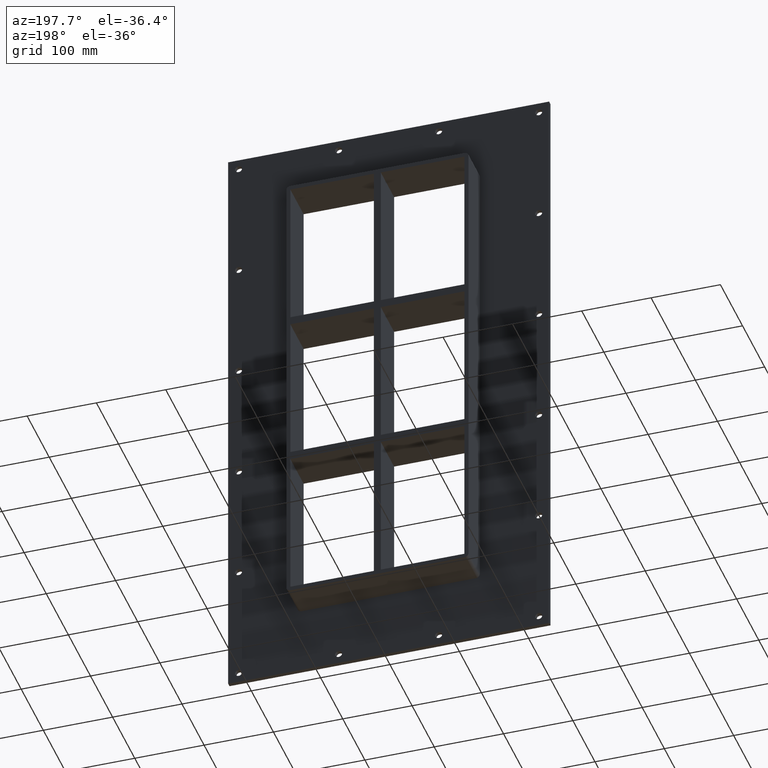
[diagram: clean part render]
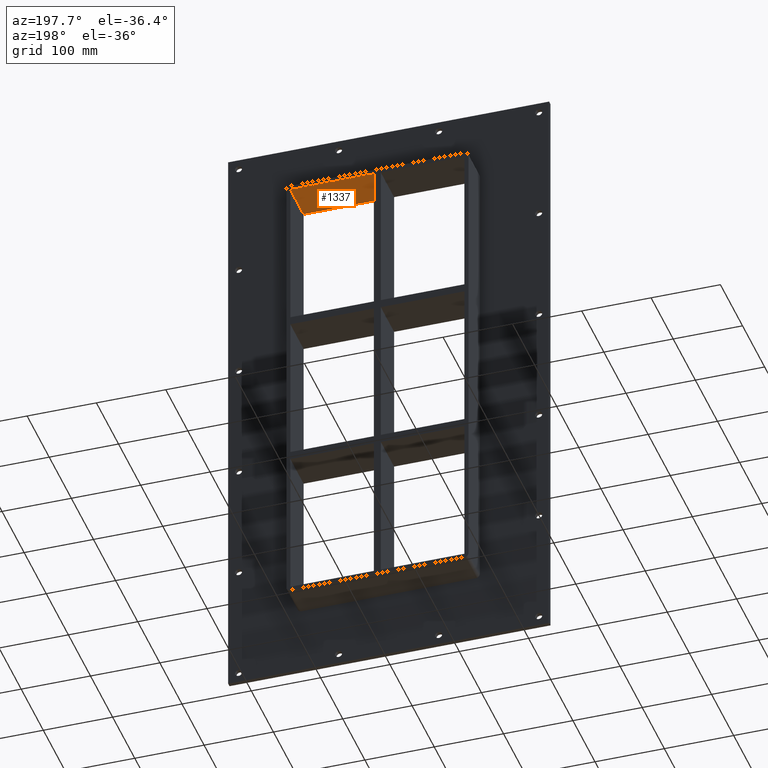
[diagram: same view with one face highlighted and labeled with its STEP entity id]
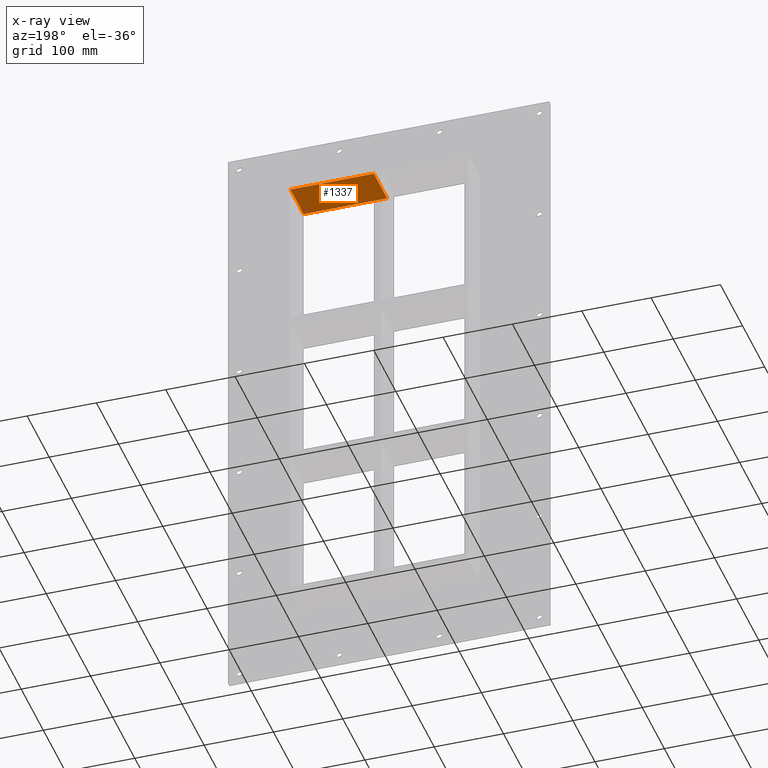
[diagram: x-ray of the same camera — body ghosted, the highlighted face saturated]
A machine part, auxiliary view. The second image highlights one B-rep face of the part: STEP entity #1337.
The next image is the same camera in x-ray: the body ghosted, the highlighted face saturated — about 0% of this face is hidden behind the body in this view.
In plain terms, the highlighted planar face has unit normal (0, 0, 1).
Its self-contained STEP definition (entity closure, byte-faithful):
#744=CARTESIAN_POINT('',(125.5,-3.0,339.00000000000006));
#745=VERTEX_POINT('',#744);
#752=CARTESIAN_POINT('',(125.5,57.0,339.00000000000006));
#753=VERTEX_POINT('',#752);
#754=CARTESIAN_POINT('',(125.5,-3.0,339.00000000000006));
#755=DIRECTION('',(0.0,1.0,0.0));
#756=VECTOR('',#755,60.0);
#757=LINE('',#754,#756);
#758=EDGE_CURVE('',#745,#753,#757,.T.);
#837=CARTESIAN_POINT('',(5.0,57.0,339.00000000000006));
#838=VERTEX_POINT('',#837);
#845=CARTESIAN_POINT('',(5.0,-3.0,339.00000000000006));
#846=VERTEX_POINT('',#845);
#847=CARTESIAN_POINT('',(5.0,-3.0,339.00000000000006));
#848=DIRECTION('',(0.0,1.0,0.0));
#849=VECTOR('',#848,60.000000000000007);
#850=LINE('',#847,#849);
#851=EDGE_CURVE('',#846,#838,#850,.T.);
#1139=CARTESIAN_POINT('',(125.5,57.0,339.00000000000006));
#1140=DIRECTION('',(-1.0,0.0,0.0));
#1141=VECTOR('',#1140,120.5);
#1142=LINE('',#1139,#1141);
#1143=EDGE_CURVE('',#753,#838,#1142,.T.);
#1321=CARTESIAN_POINT('',(-125.49999999999999,0.0,339.00000000000006));
#1322=DIRECTION('',(0.0,0.0,1.0));
#1323=DIRECTION('',(1.0,0.0,0.0));
#1324=AXIS2_PLACEMENT_3D('',#1321,#1322,#1323);
#1325=PLANE('',#1324);
#1326=ORIENTED_EDGE('',*,*,#851,.T.);
#1327=ORIENTED_EDGE('',*,*,#1143,.F.);
#1328=ORIENTED_EDGE('',*,*,#758,.F.);
#1329=CARTESIAN_POINT('',(5.000000000000007,-3.0,339.00000000000006));
#1330=DIRECTION('',(1.0,0.0,0.0));
#1331=VECTOR('',#1330,120.5);
#1332=LINE('',#1329,#1331);
#1333=EDGE_CURVE('',#846,#745,#1332,.T.);
#1334=ORIENTED_EDGE('',*,*,#1333,.F.);
#1335=EDGE_LOOP('',(#1326,#1327,#1328,#1334));
#1336=FACE_OUTER_BOUND('',#1335,.T.);
#1337=ADVANCED_FACE('',(#1336),#1325,.F.);